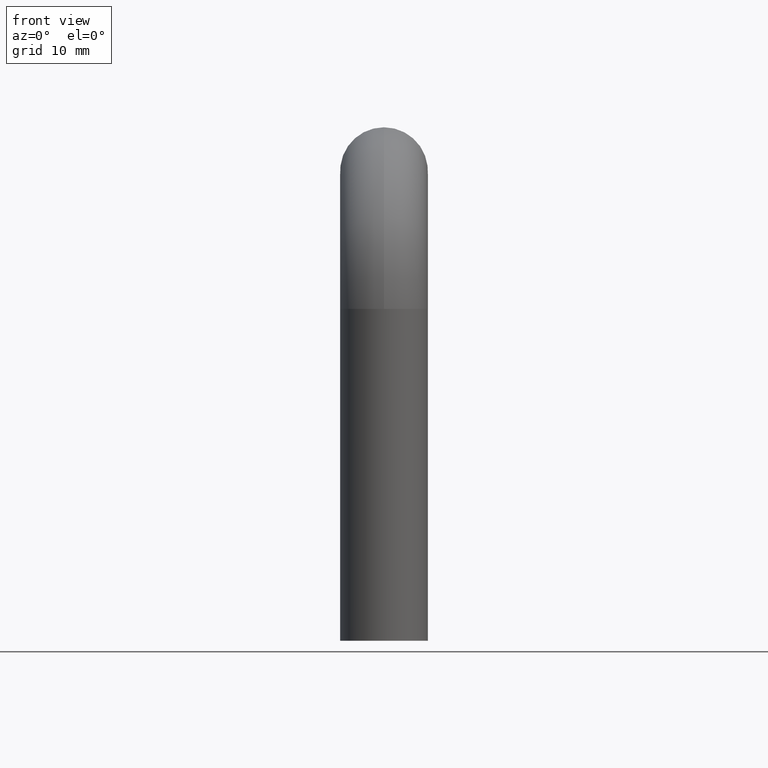
[diagram: clean part render]
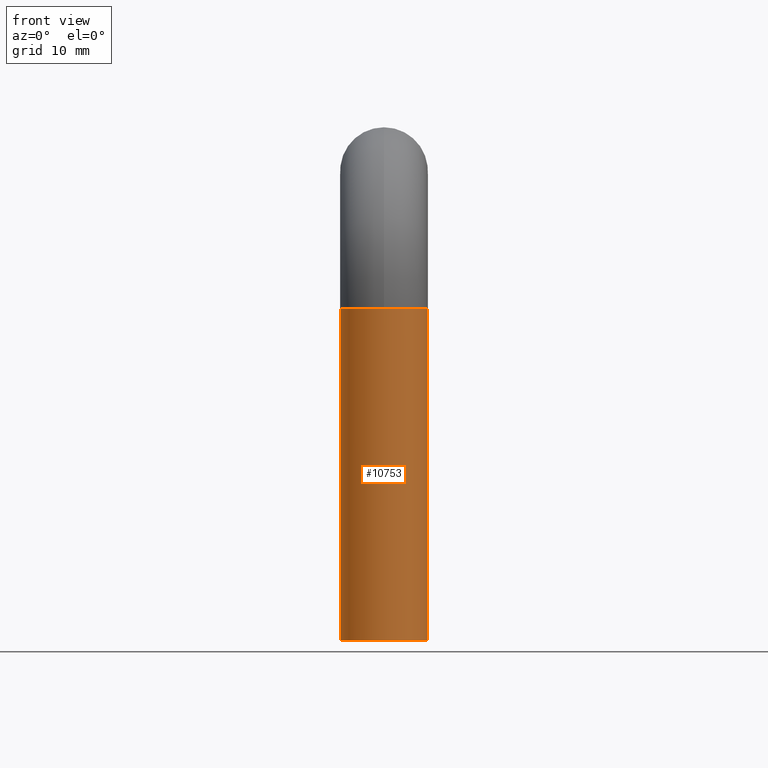
[diagram: same view with one face highlighted and labeled with its STEP entity id]
A machine part, front view. The second image highlights one B-rep face of the part: STEP entity #10753.
In plain terms, the highlighted cylindrical surface (partial cylindrical patch) has radius 7 mm, axis along (-0, -0, -1).
Its self-contained STEP definition (entity closure, byte-faithful):
#178 = CARTESIAN_POINT ( 'NONE',  ( 7.000000000000000888, 8.572527594031474176E-16, 52.99999999999983658 ) ) ;
#484 = DIRECTION ( 'NONE',  ( 1.000000000000000000, 0.000000000000000000, 0.000000000000000000 ) ) ;
#499 = DIRECTION ( 'NONE',  ( -1.000000000000000000, 0.000000000000000000, 0.000000000000000000 ) ) ;
#1311 = DIRECTION ( 'NONE',  ( -0.000000000000000000, -0.000000000000000000, -1.000000000000000000 ) ) ;
#1363 = ORIENTED_EDGE ( 'NONE', *, *, #11228, .T. ) ;
#1377 = CYLINDRICAL_SURFACE ( 'NONE', #6590, 7.000000000000000888 ) ;
#1609 = CIRCLE ( 'NONE', #11576, 7.000000000000000888 ) ;
#1767 = CARTESIAN_POINT ( 'NONE',  ( -7.000000000000000888, 0.000000000000000000, 0.000000000000000000 ) ) ;
#1908 = EDGE_CURVE ( 'NONE', #3736, #4448, #1609, .T. ) ;
#2236 = DIRECTION ( 'NONE',  ( 1.000000000000000000, 0.000000000000000000, 0.000000000000000000 ) ) ;
#2553 = VECTOR ( 'NONE', #1311, 1000.000000000000000 ) ;
#2859 = LINE ( 'NONE', #8087, #2553 ) ;
#3094 = VERTEX_POINT ( 'NONE', #178 ) ;
#3407 = CARTESIAN_POINT ( 'NONE',  ( 0.000000000000000000, 0.000000000000000000, 52.99999999999983658 ) ) ;
#3559 = DIRECTION ( 'NONE',  ( 0.000000000000000000, 0.000000000000000000, 1.000000000000000000 ) ) ;
#3608 = ORIENTED_EDGE ( 'NONE', *, *, #11793, .T. ) ;
#3641 = VECTOR ( 'NONE', #11255, 1000.000000000000000 ) ;
#3736 = VERTEX_POINT ( 'NONE', #7225 ) ;
#4448 = VERTEX_POINT ( 'NONE', #6063 ) ;
#4507 = FACE_OUTER_BOUND ( 'NONE', #10851, .T. ) ;
#4547 = LINE ( 'NONE', #5467, #3641 ) ;
#4689 = AXIS2_PLACEMENT_3D ( 'NONE', #11821, #9881, #2236 ) ;
#4700 = VERTEX_POINT ( 'NONE', #1767 ) ;
#4974 = VERTEX_POINT ( 'NONE', #8254 ) ;
#5093 = EDGE_CURVE ( 'NONE', #3094, #4974, #4547, .T. ) ;
#5467 = CARTESIAN_POINT ( 'NONE',  ( 7.000000000000000888, 8.572527594031474176E-16, 52.99999999999983658 ) ) ;
#5504 = ORIENTED_EDGE ( 'NONE', *, *, #1908, .F. ) ;
#5593 = CIRCLE ( 'NONE', #8737, 7.000000000000000888 ) ;
#5622 = DIRECTION ( 'NONE',  ( 1.000000000000000000, 0.000000000000000000, 0.000000000000000000 ) ) ;
#6063 = CARTESIAN_POINT ( 'NONE',  ( 0.000000000000000000, -7.000000000000000000, 52.99999999999983658 ) ) ;
#6273 = DIRECTION ( 'NONE',  ( -0.000000000000000000, -0.000000000000000000, -1.000000000000000000 ) ) ;
#6590 = AXIS2_PLACEMENT_3D ( 'NONE', #3407, #6273, #499 ) ;
#6795 = EDGE_CURVE ( 'NONE', #4448, #3094, #5593, .T. ) ;
#7225 = CARTESIAN_POINT ( 'NONE',  ( -7.000000000000000888, 0.000000000000000000, 52.99999999999983658 ) ) ;
#7429 = CARTESIAN_POINT ( 'NONE',  ( 0.000000000000000000, 0.000000000000000000, 52.99999999999983658 ) ) ;
#8061 = DIRECTION ( 'NONE',  ( 0.000000000000000000, 0.000000000000000000, 1.000000000000000000 ) ) ;
#8087 = CARTESIAN_POINT ( 'NONE',  ( -7.000000000000000888, 0.000000000000000000, 52.99999999999983658 ) ) ;
#8254 = CARTESIAN_POINT ( 'NONE',  ( 7.000000000000000888, 8.572527594031474176E-16, 0.000000000000000000 ) ) ;
#8737 = AXIS2_PLACEMENT_3D ( 'NONE', #7429, #3559, #5622 ) ;
#8812 = CIRCLE ( 'NONE', #4689, 7.000000000000000888 ) ;
#9881 = DIRECTION ( 'NONE',  ( 0.000000000000000000, 0.000000000000000000, 1.000000000000000000 ) ) ;
#10251 = ORIENTED_EDGE ( 'NONE', *, *, #6795, .F. ) ;
#10753 = ADVANCED_FACE ( 'NONE', ( #4507 ), #1377, .T. ) ;
#10851 = EDGE_LOOP ( 'NONE', ( #10941, #10251, #5504, #3608, #1363 ) ) ;
#10941 = ORIENTED_EDGE ( 'NONE', *, *, #5093, .F. ) ;
#10956 = CARTESIAN_POINT ( 'NONE',  ( 0.000000000000000000, 0.000000000000000000, 52.99999999999983658 ) ) ;
#11228 = EDGE_CURVE ( 'NONE', #4700, #4974, #8812, .T. ) ;
#11255 = DIRECTION ( 'NONE',  ( -0.000000000000000000, -0.000000000000000000, -1.000000000000000000 ) ) ;
#11576 = AXIS2_PLACEMENT_3D ( 'NONE', #10956, #8061, #484 ) ;
#11793 = EDGE_CURVE ( 'NONE', #3736, #4700, #2859, .T. ) ;
#11821 = CARTESIAN_POINT ( 'NONE',  ( 0.000000000000000000, 0.000000000000000000, 0.000000000000000000 ) ) ;